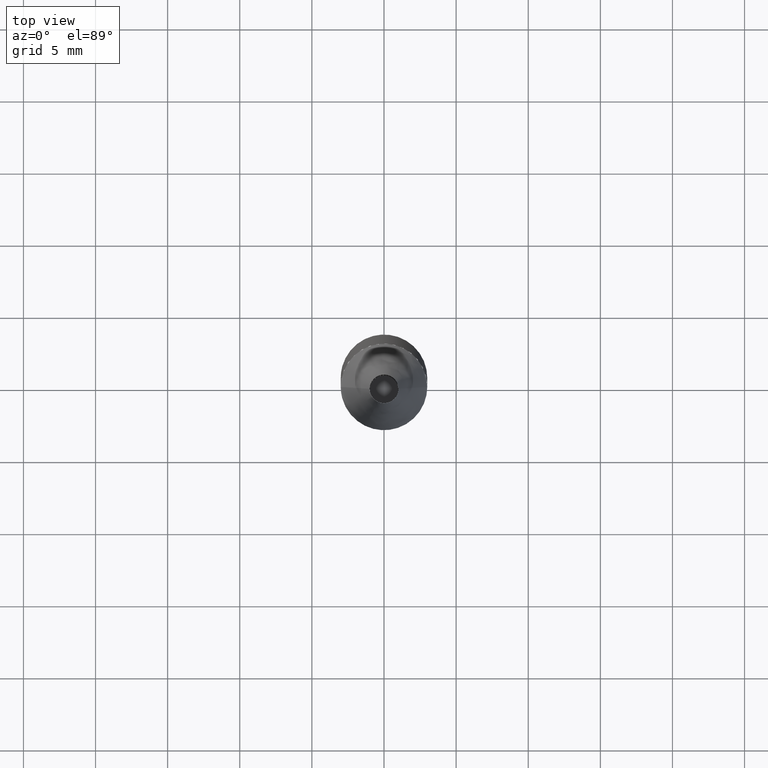
[diagram: clean part render]
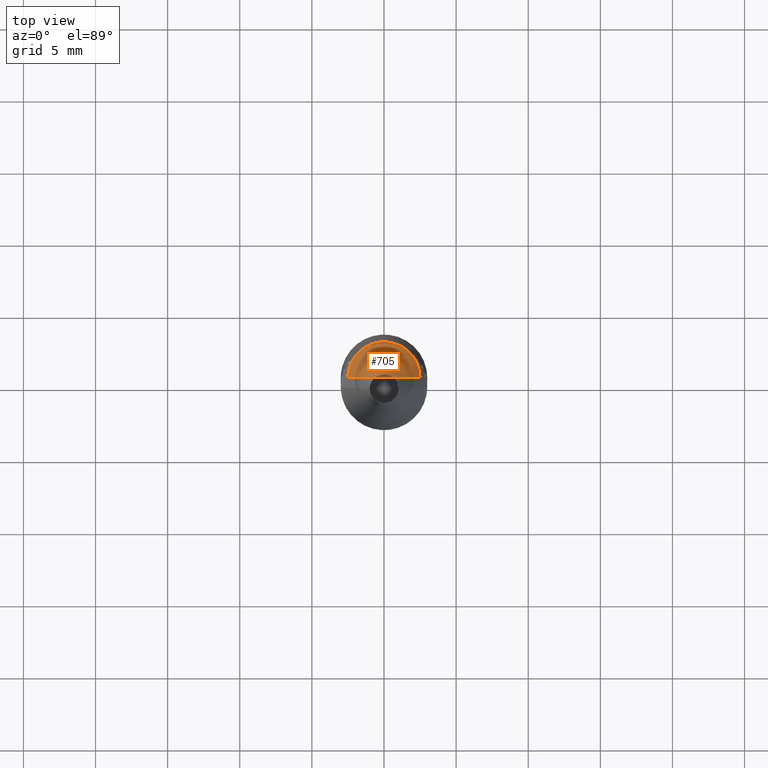
[diagram: same view with one face highlighted and labeled with its STEP entity id]
A machine part, top view. The second image highlights one B-rep face of the part: STEP entity #705.
In plain terms, the highlighted face is a freeform B-spline surface patch.
Its self-contained STEP definition (entity closure, byte-faithful):
#421=CARTESIAN_POINT('',(2.5,0.0,36.535898384862));
#422=CARTESIAN_POINT('',(2.5,2.5,36.535898384862));
#423=CARTESIAN_POINT('',(0.0,2.5,36.535898384862));
#424=CARTESIAN_POINT('',(-2.5,2.5,36.535898384862));
#425=CARTESIAN_POINT('',(-2.5,0.0,36.535898384862));
#426=CARTESIAN_POINT('',(0.0,0.0,36.535898384862));
#690=(
BOUNDED_SURFACE()
B_SPLINE_SURFACE(1,2,(
(#421,#422,#423,#424,#425),
(#426,#426,#426,#426,#426)
), .UNSPECIFIED.,.F.,.F.,.F.)
B_SPLINE_SURFACE_WITH_KNOTS((2,2),(3,2,3),(
0.0,1.0),(
0.0,0.5,1.0), .UNSPECIFIED.)
GEOMETRIC_REPRESENTATION_ITEM()
RATIONAL_B_SPLINE_SURFACE(((1.0,0.707106781187,1.0,0.707106781187,1.0),
(1.0,0.707106781187,1.0,0.707106781187,1.0)
))
REPRESENTATION_ITEM('')
SURFACE()
);
#691=(
BOUNDED_CURVE()
B_SPLINE_CURVE(1,(#426,#421),.UNSPECIFIED.,.F.,.F.)
B_SPLINE_CURVE_WITH_KNOTS((2,2),
(0.0,1.0),.UNSPECIFIED.)
CURVE()
GEOMETRIC_REPRESENTATION_ITEM()
RATIONAL_B_SPLINE_CURVE((1.0,1.0))
REPRESENTATION_ITEM('')
);
#692=(
BOUNDED_CURVE()
B_SPLINE_CURVE(2,(#421,#422,#423,#424,#425),.UNSPECIFIED.,.F.,.F.)
B_SPLINE_CURVE_WITH_KNOTS((3,2,3),
(0.0,0.5,1.0),.UNSPECIFIED.)
CURVE()
GEOMETRIC_REPRESENTATION_ITEM()
RATIONAL_B_SPLINE_CURVE((1.0,0.707106781187,1.0,0.707106781187,1.0))
REPRESENTATION_ITEM('')
);
#693=(
BOUNDED_CURVE()
B_SPLINE_CURVE(1,(#425,#426),.UNSPECIFIED.,.F.,.F.)
B_SPLINE_CURVE_WITH_KNOTS((2,2),
(0.0,1.0),.UNSPECIFIED.)
CURVE()
GEOMETRIC_REPRESENTATION_ITEM()
RATIONAL_B_SPLINE_CURVE((1.0,1.0))
REPRESENTATION_ITEM('')
);
#694=VERTEX_POINT('',#421);
#695=VERTEX_POINT('',#425);
#696=VERTEX_POINT('',#426);
#697=EDGE_CURVE('',#696,#694,#691,.T.);
#698=EDGE_CURVE('',#694,#695,#692,.T.);
#699=EDGE_CURVE('',#695,#696,#693,.T.);
#700=ORIENTED_EDGE('',*,*,#697,.T.);
#701=ORIENTED_EDGE('',*,*,#698,.T.);
#702=ORIENTED_EDGE('',*,*,#699,.T.);
#703=EDGE_LOOP('',(#700,#701,#702));
#704=FACE_OUTER_BOUND('',#703,.T.);
#705=ADVANCED_FACE('',(#704),#690,.T.);